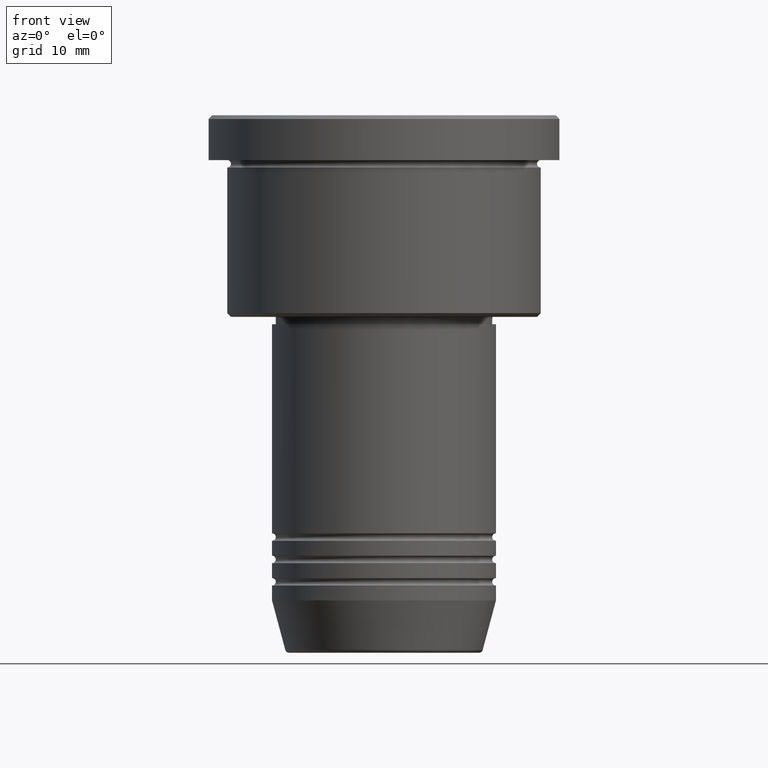
[diagram: clean part render]
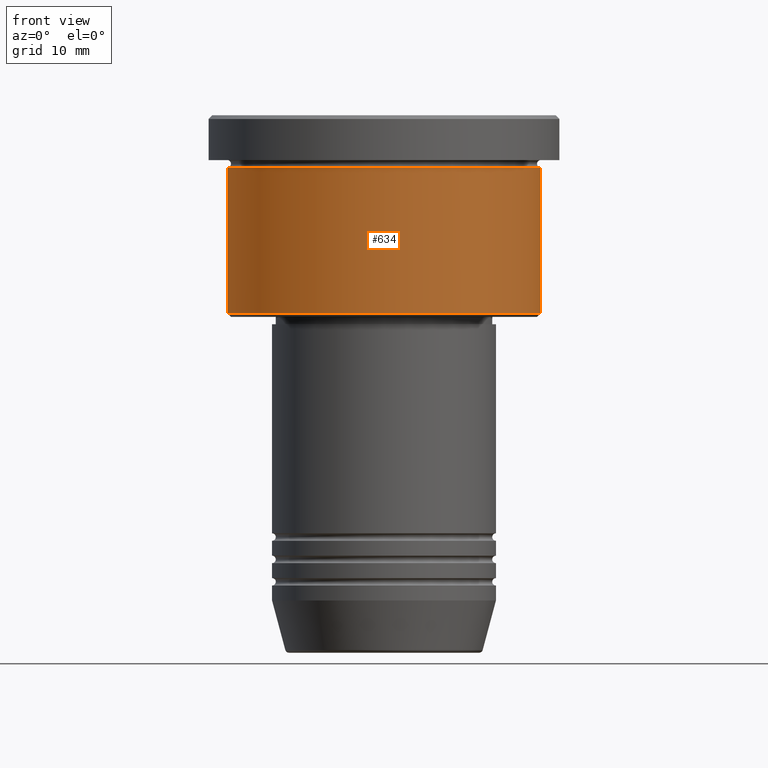
[diagram: same view with one face highlighted and labeled with its STEP entity id]
A machine part, front view. The second image highlights one B-rep face of the part: STEP entity #634.
In plain terms, the highlighted cylindrical surface (partial cylindrical patch) has radius 21 mm, axis along (-0, -0, 1).
Its self-contained STEP definition (entity closure, byte-faithful):
#11 = AXIS2_PLACEMENT_3D ( 'NONE', #888, #252, #627 ) ;
#31 = CARTESIAN_POINT ( 'NONE',  ( -21.00000000000000000, 2.571758278209441661E-15, -6.999999999999994671 ) ) ;
#63 = VERTEX_POINT ( 'NONE', #476 ) ;
#67 = DIRECTION ( 'NONE',  ( -0.000000000000000000, -0.000000000000000000, 1.000000000000000000 ) ) ;
#76 = EDGE_CURVE ( 'NONE', #688, #1093, #669, .T. ) ;
#111 = DIRECTION ( 'NONE',  ( -1.000000000000000000, 0.000000000000000000, 0.000000000000000000 ) ) ;
#130 = EDGE_CURVE ( 'NONE', #688, #1171, #964, .T. ) ;
#151 = CARTESIAN_POINT ( 'NONE',  ( -21.00000000000000000, 2.571758278209441661E-15, 0.000000000000000000 ) ) ;
#176 = EDGE_CURVE ( 'NONE', #1093, #63, #968, .T. ) ;
#189 = EDGE_CURVE ( 'NONE', #1171, #63, #282, .T. ) ;
#230 = ORIENTED_EDGE ( 'NONE', *, *, #130, .F. ) ;
#252 = DIRECTION ( 'NONE',  ( -0.000000000000000000, -0.000000000000000000, 1.000000000000000000 ) ) ;
#258 = ORIENTED_EDGE ( 'NONE', *, *, #76, .T. ) ;
#262 = VECTOR ( 'NONE', #518, 1000.000000000000000 ) ;
#282 = CIRCLE ( 'NONE', #11, 21.00000000000000000 ) ;
#440 = ORIENTED_EDGE ( 'NONE', *, *, #189, .F. ) ;
#450 = ORIENTED_EDGE ( 'NONE', *, *, #176, .T. ) ;
#476 = CARTESIAN_POINT ( 'NONE',  ( 21.00000000000000000, 0.000000000000000000, -6.999999999999994671 ) ) ;
#477 = DIRECTION ( 'NONE',  ( -0.000000000000000000, -0.000000000000000000, 1.000000000000000000 ) ) ;
#504 = EDGE_LOOP ( 'NONE', ( #230, #258, #450, #440 ) ) ;
#505 = VECTOR ( 'NONE', #67, 1000.000000000000000 ) ;
#518 = DIRECTION ( 'NONE',  ( -0.000000000000000000, -0.000000000000000000, 1.000000000000000000 ) ) ;
#627 = DIRECTION ( 'NONE',  ( 1.000000000000000000, 0.000000000000000000, 0.000000000000000000 ) ) ;
#634 = ADVANCED_FACE ( 'NONE', ( #1112 ), #833, .T. ) ;
#657 = CARTESIAN_POINT ( 'NONE',  ( -21.00000000000000000, 2.571758278209441661E-15, -26.50000000000002132 ) ) ;
#661 = DIRECTION ( 'NONE',  ( 1.000000000000000000, 0.000000000000000000, 0.000000000000000000 ) ) ;
#669 = CIRCLE ( 'NONE', #684, 21.00000000000000000 ) ;
#684 = AXIS2_PLACEMENT_3D ( 'NONE', #1102, #925, #111 ) ;
#688 = VERTEX_POINT ( 'NONE', #657 ) ;
#763 = CARTESIAN_POINT ( 'NONE',  ( 0.000000000000000000, 0.000000000000000000, 0.000000000000000000 ) ) ;
#833 = CYLINDRICAL_SURFACE ( 'NONE', #854, 21.00000000000000000 ) ;
#854 = AXIS2_PLACEMENT_3D ( 'NONE', #763, #477, #661 ) ;
#888 = CARTESIAN_POINT ( 'NONE',  ( 0.000000000000000000, 0.000000000000000000, -6.999999999999994671 ) ) ;
#925 = DIRECTION ( 'NONE',  ( -0.000000000000000000, -0.000000000000000000, 1.000000000000000000 ) ) ;
#964 = LINE ( 'NONE', #151, #262 ) ;
#968 = LINE ( 'NONE', #979, #505 ) ;
#979 = CARTESIAN_POINT ( 'NONE',  ( 21.00000000000000000, 0.000000000000000000, 0.000000000000000000 ) ) ;
#1093 = VERTEX_POINT ( 'NONE', #1115 ) ;
#1102 = CARTESIAN_POINT ( 'NONE',  ( 0.000000000000000000, 0.000000000000000000, -26.50000000000002132 ) ) ;
#1112 = FACE_OUTER_BOUND ( 'NONE', #504, .T. ) ;
#1115 = CARTESIAN_POINT ( 'NONE',  ( 21.00000000000000000, 0.000000000000000000, -26.50000000000002132 ) ) ;
#1171 = VERTEX_POINT ( 'NONE', #31 ) ;